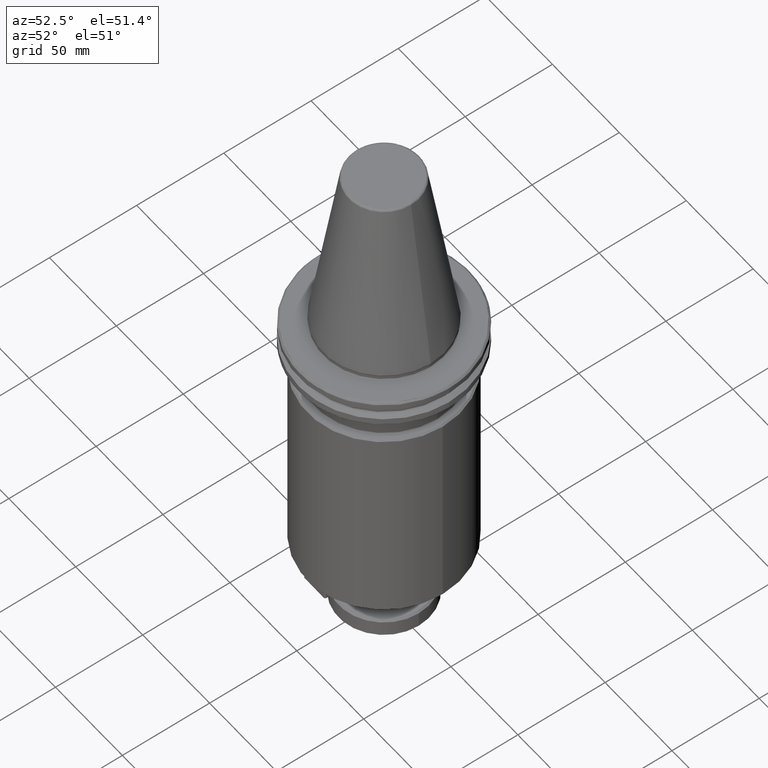
[diagram: clean part render]
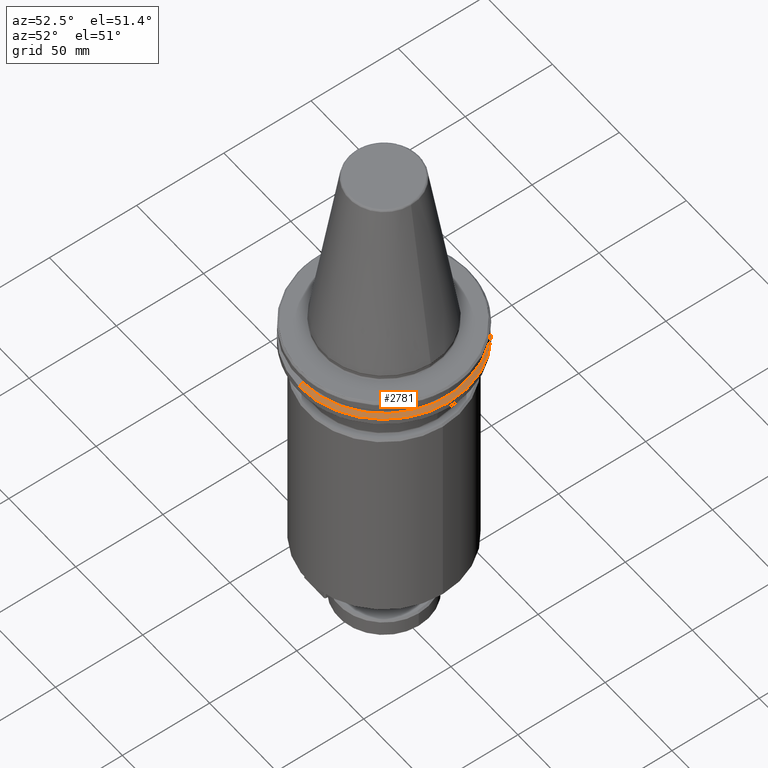
[diagram: same view with one face highlighted and labeled with its STEP entity id]
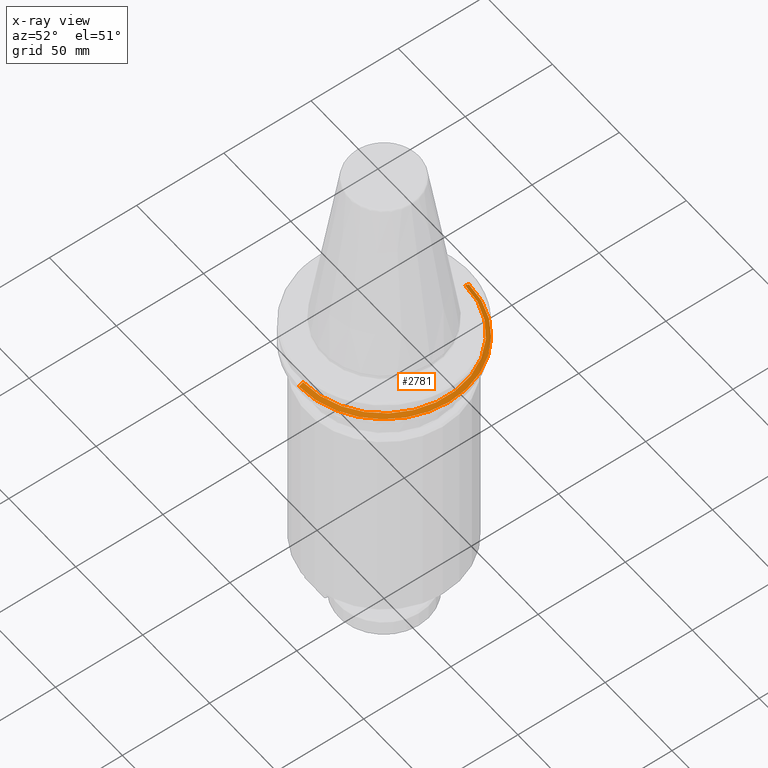
[diagram: x-ray of the same camera — body ghosted, the highlighted face saturated]
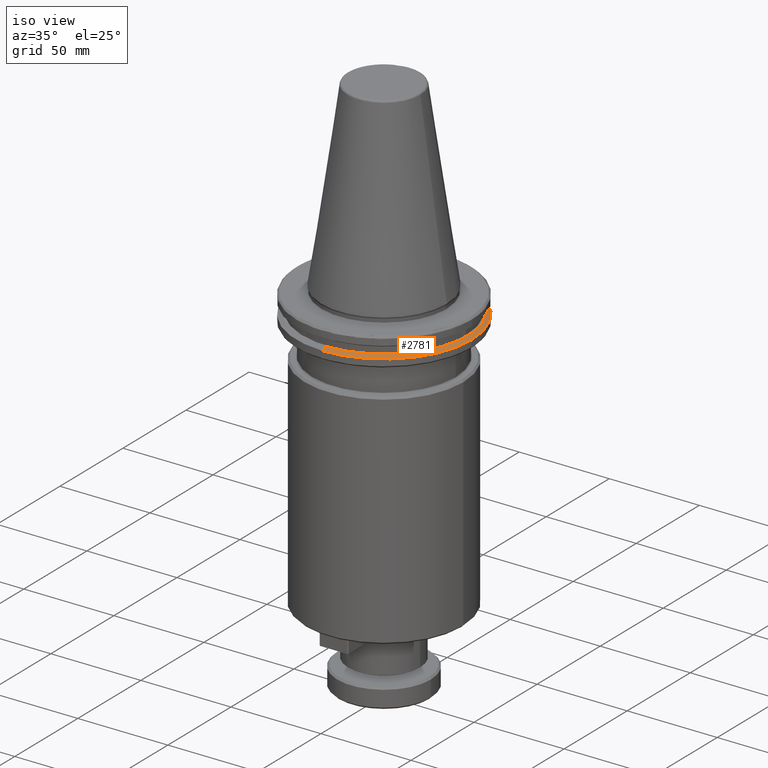
[diagram: same view with one face highlighted and labeled with its STEP entity id]
A machine part, auxiliary view. The second image highlights one B-rep face of the part: STEP entity #2781.
The next image is the same camera in x-ray: the body ghosted, the highlighted face saturated — about 0% of this face is hidden behind the body in this view.
A second angle (iso view) of the same face is appended — the face is thin or edge-on in the first view.
In plain terms, the highlighted conical surface has half-angle 60 deg.
Its self-contained STEP definition (entity closure, byte-faithful):
#26 = ORIENTED_EDGE ( 'NONE', *, *, #373, .F. ) ;
#66 = CARTESIAN_POINT ( 'NONE',  ( 0.0000000000000000000, 48.75000000000000700, -14.34759526419166200 ) ) ;
#373 = EDGE_CURVE ( 'NONE', #775, #2879, #4221, .T. ) ;
#540 = VERTEX_POINT ( 'NONE', #4274 ) ;
#603 = DIRECTION ( 'NONE',  ( 0.0000000000000000000, 0.8660254037844393700, -0.4999999999999987200 ) ) ;
#634 = CIRCLE ( 'NONE', #4467, 48.75000000000000000 ) ;
#730 = CARTESIAN_POINT ( 'NONE',  ( 5.970153145843347900E-015, -48.75000000000000700, -14.34759526419166200 ) ) ;
#762 = VECTOR ( 'NONE', #603, 1000.000000000000000 ) ;
#775 = VERTEX_POINT ( 'NONE', #4635 ) ;
#862 = DIRECTION ( 'NONE',  ( 0.0000000000000000000, 1.000000000000000000, 0.0000000000000000000 ) ) ;
#866 = CARTESIAN_POINT ( 'NONE',  ( 0.0000000000000000000, 0.0000000000000000000, -14.34759526419166200 ) ) ;
#869 = VERTEX_POINT ( 'NONE', #4421 ) ;
#880 = DIRECTION ( 'NONE',  ( 0.0000000000000000000, 1.779203565104417400E-017, -1.000000000000000000 ) ) ;
#930 = CIRCLE ( 'NONE', #4805, 48.75000000000000000 ) ;
#1052 = EDGE_CURVE ( 'NONE', #3400, #2879, #634, .T. ) ;
#1176 = ORIENTED_EDGE ( 'NONE', *, *, #1052, .T. ) ;
#1229 = DIRECTION ( 'NONE',  ( -1.000000000000000000, 0.0000000000000000000, 0.0000000000000000000 ) ) ;
#1231 = DIRECTION ( 'NONE',  ( -0.0000000000000000000, -0.0000000000000000000, 1.000000000000000000 ) ) ;
#1232 = CARTESIAN_POINT ( 'NONE',  ( 0.0000000000000000000, 0.0000000000000000000, -14.34759526419166200 ) ) ;
#1243 = FACE_OUTER_BOUND ( 'NONE', #3842, .T. ) ;
#1248 = CARTESIAN_POINT ( 'NONE',  ( 48.75000000000001400, 0.0000000000000000000, -14.34759526419166200 ) ) ;
#1381 = CONICAL_SURFACE ( 'NONE', #2987, 48.75000000000000700, 1.047197551196599200 ) ;
#1561 = AXIS2_PLACEMENT_3D ( 'NONE', #3737, #3657, #3642 ) ;
#1754 = CARTESIAN_POINT ( 'NONE',  ( 0.0000000000000000000, 48.75000000000000700, -14.34759526419166200 ) ) ;
#1765 = ORIENTED_EDGE ( 'NONE', *, *, #2629, .T. ) ;
#1951 = ORIENTED_EDGE ( 'NONE', *, *, #3468, .T. ) ;
#2273 = LINE ( 'NONE', #730, #2315 ) ;
#2274 = DIRECTION ( 'NONE',  ( -0.0000000000000000000, -0.0000000000000000000, 1.000000000000000000 ) ) ;
#2315 = VECTOR ( 'NONE', #2417, 1000.000000000000000 ) ;
#2417 = DIRECTION ( 'NONE',  ( 1.060575238724907800E-016, -0.8660254037844393700, -0.4999999999999987200 ) ) ;
#2629 = EDGE_CURVE ( 'NONE', #869, #3400, #930, .T. ) ;
#2781 = ADVANCED_FACE ( 'NONE', ( #1243 ), #1381, .T. ) ;
#2879 = VERTEX_POINT ( 'NONE', #66 ) ;
#2987 = AXIS2_PLACEMENT_3D ( 'NONE', #866, #880, #862 ) ;
#3315 = CIRCLE ( 'NONE', #1561, 46.41589653438085600 ) ;
#3400 = VERTEX_POINT ( 'NONE', #1248 ) ;
#3443 = ORIENTED_EDGE ( 'NONE', *, *, #3815, .T. ) ;
#3468 = EDGE_CURVE ( 'NONE', #540, #869, #2273, .T. ) ;
#3642 = DIRECTION ( 'NONE',  ( 0.0000000000000000000, 1.000000000000000000, 0.0000000000000000000 ) ) ;
#3657 = DIRECTION ( 'NONE',  ( 0.0000000000000000000, 1.779203565104417400E-017, -1.000000000000000000 ) ) ;
#3737 = CARTESIAN_POINT ( 'NONE',  ( 0.0000000000000000000, -2.397646298367614400E-017, -13.00000000000001100 ) ) ;
#3815 = EDGE_CURVE ( 'NONE', #775, #540, #3315, .T. ) ;
#3842 = EDGE_LOOP ( 'NONE', ( #3443, #1951, #1765, #1176, #26 ) ) ;
#4221 = LINE ( 'NONE', #1754, #762 ) ;
#4274 = CARTESIAN_POINT ( 'NONE',  ( 5.827230528940885300E-015, -46.41589653438085600, -13.00000000000001100 ) ) ;
#4421 = CARTESIAN_POINT ( 'NONE',  ( 5.970153145843347900E-015, -48.75000000000000700, -14.34759526419166200 ) ) ;
#4467 = AXIS2_PLACEMENT_3D ( 'NONE', #4533, #2274, #4894 ) ;
#4533 = CARTESIAN_POINT ( 'NONE',  ( 0.0000000000000000000, 0.0000000000000000000, -14.34759526419166200 ) ) ;
#4635 = CARTESIAN_POINT ( 'NONE',  ( 0.0000000000000000000, 46.41589653438085600, -13.00000000000001100 ) ) ;
#4805 = AXIS2_PLACEMENT_3D ( 'NONE', #1232, #1231, #1229 ) ;
#4894 = DIRECTION ( 'NONE',  ( -1.000000000000000000, 0.0000000000000000000, 0.0000000000000000000 ) ) ;